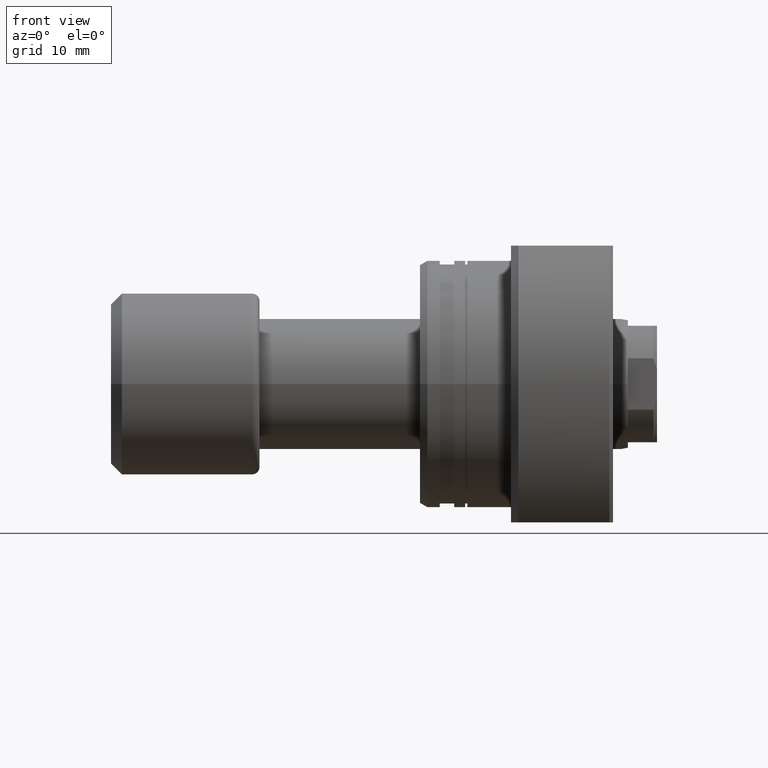
[diagram: clean part render]
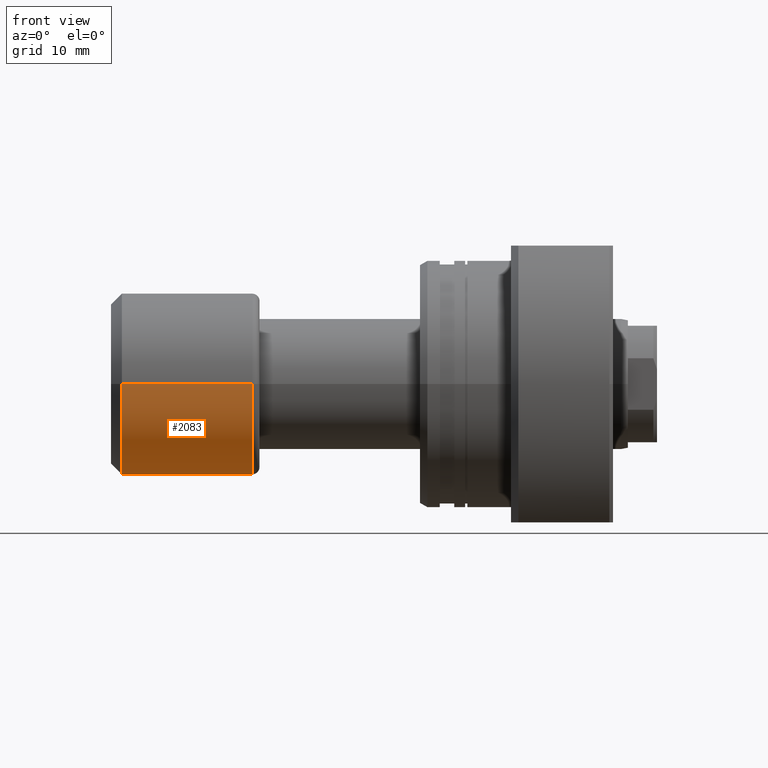
[diagram: same view with one face highlighted and labeled with its STEP entity id]
A machine part, front view. The second image highlights one B-rep face of the part: STEP entity #2083.
In plain terms, the highlighted cylindrical surface (partial cylindrical patch) has radius 12.5 mm, axis along (-1, -0, -0).
Its self-contained STEP definition (entity closure, byte-faithful):
#93 = VECTOR ( 'NONE', #1902, 1000.000000000000000 ) ;
#226 = CARTESIAN_POINT ( 'NONE',  ( 19.40000000000000213, 2.074912104813987675E-16, 0.000000000000000000 ) ) ;
#401 = AXIS2_PLACEMENT_3D ( 'NONE', #226, #670, #3203 ) ;
#418 = DIRECTION ( 'NONE',  ( -1.000000000000000000, -1.069542322069065801E-17, -0.000000000000000000 ) ) ;
#468 = FACE_OUTER_BOUND ( 'NONE', #3009, .T. ) ;
#568 = VERTEX_POINT ( 'NONE', #1619 ) ;
#634 = VERTEX_POINT ( 'NONE', #3151 ) ;
#661 = LINE ( 'NONE', #2142, #2604 ) ;
#664 = EDGE_CURVE ( 'NONE', #1936, #716, #1116, .T. ) ;
#670 = DIRECTION ( 'NONE',  ( -1.000000000000000000, -1.069542322069065801E-17, -0.000000000000000000 ) ) ;
#708 = AXIS2_PLACEMENT_3D ( 'NONE', #1879, #1308, #3084 ) ;
#716 = VERTEX_POINT ( 'NONE', #1816 ) ;
#901 = EDGE_CURVE ( 'NONE', #568, #634, #3160, .T. ) ;
#939 = DIRECTION ( 'NONE',  ( -1.000000000000000000, -1.069542322069065801E-17, -0.000000000000000000 ) ) ;
#980 = AXIS2_PLACEMENT_3D ( 'NONE', #2460, #939, #3198 ) ;
#1116 = CIRCLE ( 'NONE', #708, 12.50000000000000000 ) ;
#1308 = DIRECTION ( 'NONE',  ( -1.000000000000000000, -1.069542322069065801E-17, -0.000000000000000000 ) ) ;
#1449 = CYLINDRICAL_SURFACE ( 'NONE', #980, 12.50000000000000000 ) ;
#1501 = ORIENTED_EDGE ( 'NONE', *, *, #1510, .T. ) ;
#1510 = EDGE_CURVE ( 'NONE', #634, #716, #1881, .T. ) ;
#1619 = CARTESIAN_POINT ( 'NONE',  ( 19.40000000000000213, 12.50000000000000000, 1.530808498934191521E-15 ) ) ;
#1816 = CARTESIAN_POINT ( 'NONE',  ( 1.500000000000001776, -12.50000000000000000, 1.530808498934191521E-15 ) ) ;
#1879 = CARTESIAN_POINT ( 'NONE',  ( 1.500000000000001554, 1.604313483103600319E-17, 0.000000000000000000 ) ) ;
#1881 = LINE ( 'NONE', #2883, #93 ) ;
#1902 = DIRECTION ( 'NONE',  ( -1.000000000000000000, -1.069542322069065801E-17, -0.000000000000000000 ) ) ;
#1936 = VERTEX_POINT ( 'NONE', #2351 ) ;
#2083 = ADVANCED_FACE ( 'NONE', ( #468 ), #1449, .T. ) ;
#2142 = CARTESIAN_POINT ( 'NONE',  ( -1.336927902586332490E-16, 12.50000000000000000, 1.530808498934191521E-15 ) ) ;
#2351 = CARTESIAN_POINT ( 'NONE',  ( 1.500000000000001332, 12.50000000000000000, 0.000000000000000000 ) ) ;
#2371 = EDGE_CURVE ( 'NONE', #568, #1936, #661, .T. ) ;
#2460 = CARTESIAN_POINT ( 'NONE',  ( 0.000000000000000000, 0.000000000000000000, 0.000000000000000000 ) ) ;
#2604 = VECTOR ( 'NONE', #418, 1000.000000000000000 ) ;
#2749 = ORIENTED_EDGE ( 'NONE', *, *, #664, .F. ) ;
#2883 = CARTESIAN_POINT ( 'NONE',  ( 1.336927902586332490E-16, -12.50000000000000000, 0.000000000000000000 ) ) ;
#2947 = ORIENTED_EDGE ( 'NONE', *, *, #2371, .F. ) ;
#2988 = ORIENTED_EDGE ( 'NONE', *, *, #901, .T. ) ;
#3009 = EDGE_LOOP ( 'NONE', ( #2947, #2988, #1501, #2749 ) ) ;
#3084 = DIRECTION ( 'NONE',  ( 1.734723475976807094E-17, -1.000000000000000000, 0.000000000000000000 ) ) ;
#3151 = CARTESIAN_POINT ( 'NONE',  ( 19.40000000000000213, -12.50000000000000000, 0.000000000000000000 ) ) ;
#3160 = CIRCLE ( 'NONE', #401, 12.50000000000000000 ) ;
#3198 = DIRECTION ( 'NONE',  ( 1.069542322069065955E-17, -1.000000000000000000, 0.000000000000000000 ) ) ;
#3203 = DIRECTION ( 'NONE',  ( 0.000000000000000000, -1.000000000000000000, 0.000000000000000000 ) ) ;